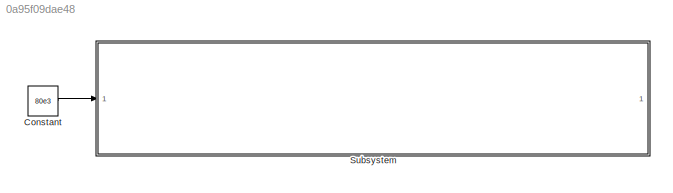
MODEL slx_0a95f09dae48
KIND model
CONFIG AbsTol = auto
CONFIG EnableMultiTasking = off
CONFIG FixedStep = auto
CONFIG MaxStep = auto
CONFIG MinStep = auto
CONFIG RelTol = 1e-3
CONFIG SampleTimeConstraint = Unconstrained
CONFIG SolverName = VariableStepAuto
CONFIG StartTime = 0.0
CONFIG StopTime = 0.002
BLOCK [Constant] Constant
  Value = 80e3
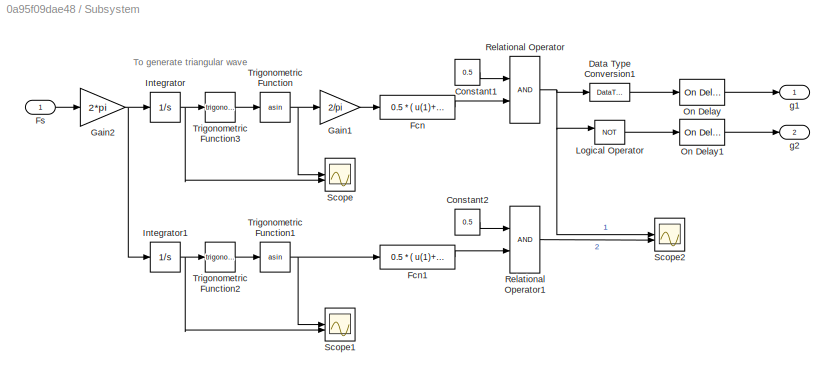
BLOCK [SubSystem] Subsystem
BLOCK [Constant] Subsystem/Constant1
  Value = 0.5
BLOCK [Constant] Subsystem/Constant2
  Value = 0.5
BLOCK [DataTypeConversion] Subsystem/Data Type Conversion1
  OutDataTypeStr = double
  RndMeth = Floor
  SaturateOnIntegerOverflow = off
BLOCK [Fcn] Subsystem/Fcn
  Expr = 0.5 * ( u(1)+1 )
BLOCK [Fcn] Subsystem/Fcn1
  Expr = 0.5 * ( u(1)+1 )
BLOCK [Inport] Subsystem/Fs
BLOCK [Gain] Subsystem/Gain1
  Gain = 2/pi
  OutDataTypeStr = Inherit: Same as input
  ParamDataTypeStr = Inherit: Same as input
  SaturateOnIntegerOverflow = on
BLOCK [Gain] Subsystem/Gain2
  Gain = 2*pi
  OutDataTypeStr = Inherit: Same as input
  ParamDataTypeStr = Inherit: Same as input
  SaturateOnIntegerOverflow = on
BLOCK [Integrator] Subsystem/Integrator
BLOCK [Integrator] Subsystem/Integrator1
BLOCK [Logic] Subsystem/Logical Operator
  AllPortsSameDT = off
  Operator = NOT
  OutDataTypeStr = float('double')
BLOCK [Reference] Subsystem/On Delay  REF=spsOnDelayLib/On Delay
  LibrarySourceBlock = sps_lib/Control/On Delay
  NameLocation = top
  SourceBlock = spsOnDelayLib/On Delay
  SourceType = On/Off Delay
BLOCK [Reference] Subsystem/On Delay1  REF=spsOnDelayLib/On Delay
  LibrarySourceBlock = sps_lib/Control/On Delay
  NameLocation = top
  SourceBlock = spsOnDelayLib/On Delay
  SourceType = On/Off Delay
BLOCK [RelationalOperator] Subsystem/Relational Operator
  InputSameDT = off
  OutDataTypeStr = boolean
BLOCK [RelationalOperator] Subsystem/Relational Operator1
  InputSameDT = off
  OutDataTypeStr = boolean
BLOCK [Scope] Subsystem/Scope
  Floating = off
  NumInputPorts = 2
  ScopeSpecificationString = Simulink.scopes.TimeScopeBlockCfg('CurrentConfiguration', extmgr.ConfigurationSet(extmgr.Configuration('Core','General UI',true),extmgr.Configuration('Core','Source UI',true),extmgr.Configuration('Sources','WiredSimulink',true,'DataLoggingVariableName','ScopeData1'),extmgr.Configuration('Visuals','Time Domain',true,'SerializedDisplays',{struct('MinYLimReal','-3.43698','MaxYLimReal','4.67674','YLab...<+1413ch>
BLOCK [Scope] Subsystem/Scope1
  Floating = off
  NumInputPorts = 2
  ScopeSpecificationString = Simulink.scopes.TimeScopeBlockCfg('CurrentConfiguration', extmgr.ConfigurationSet(extmgr.Configuration('Core','General UI',true),extmgr.Configuration('Core','Source UI',true),extmgr.Configuration('Sources','WiredSimulink',true),extmgr.Configuration('Visuals','Time Domain',true,'SerializedDisplays',{struct('MinYLimReal','-3.43698','MaxYLimReal','4.67674','YLabelReal','','MinYLimMag','0.00000','MaxY...<+1374ch>
BLOCK [Scope] Subsystem/Scope2
  Floating = off
  NumInputPorts = 2
  ScopeSpecificationString = Simulink.scopes.TimeScopeBlockCfg('CurrentConfiguration', extmgr.ConfigurationSet(extmgr.Configuration('Core','General UI',true),extmgr.Configuration('Core','Source UI',true),extmgr.Configuration('Sources','WiredSimulink',true,'DataLoggingVariableName','ScopeData2'),extmgr.Configuration('Visuals','Time Domain',true,'SerializedDisplays',{struct('MinYLimReal','-0.125','MaxYLimReal','1.125','YLabelRe...<+2011ch>
BLOCK [Trigonometry] Subsystem/Trigonometric Function
  Operator = asin
BLOCK [Trigonometry] Subsystem/Trigonometric Function1
  Operator = asin
BLOCK [Trigonometry] Subsystem/Trigonometric Function2
BLOCK [Trigonometry] Subsystem/Trigonometric Function3
BLOCK [Outport] Subsystem/g1
BLOCK [Outport] Subsystem/g2
  Port = 2
ANNOTATION Subsystem: To generate triangular wave
LINE Constant:1 -> Subsystem:1
LINE Subsystem/Constant1:1 -> Subsystem/Relational Operator:1
LINE Subsystem/Constant2:1 -> Subsystem/Relational Operator1:1
LINE Subsystem/Data Type Conversion1:1 -> Subsystem/On Delay:1
LINE Subsystem/Fcn1:1 -> Subsystem/Relational Operator1:2
LINE Subsystem/Fcn:1 -> Subsystem/Relational Operator:2
LINE Subsystem/Fs:1 -> Subsystem/Gain2:1
LINE Subsystem/Gain1:1 -> Subsystem/Fcn:1
NET Subsystem/Gain2:1 -> Subsystem/Integrator1:1, Subsystem/Integrator:1
NET Subsystem/Integrator1:1 -> Subsystem/Scope1:2, Subsystem/Trigonometric Function2:1
NET Subsystem/Integrator:1 -> Subsystem/Scope:2, Subsystem/Trigonometric Function3:1
LINE Subsystem/Logical Operator:1 -> Subsystem/On Delay1:1
LINE Subsystem/On Delay1:1 -> Subsystem/g2:1
LINE Subsystem/On Delay:1 -> Subsystem/g1:1
LINE Subsystem/Relational Operator1:1 -> Subsystem/Scope2:2
NET Subsystem/Relational Operator:1 -> Subsystem/Data Type Conversion1:1, Subsystem/Logical Operator:1, Subsystem/Scope2:1
NET Subsystem/Trigonometric Function1:1 -> Subsystem/Fcn1:1, Subsystem/Scope1:1
LINE Subsystem/Trigonometric Function2:1 -> Subsystem/Trigonometric Function1:1
LINE Subsystem/Trigonometric Function3:1 -> Subsystem/Trigonometric Function:1
NET Subsystem/Trigonometric Function:1 -> Subsystem/Gain1:1, Subsystem/Scope:1
note: NET lines group one-source signal fan-out (src -> all destinations, sorted); 1:1 wires keep LINE
